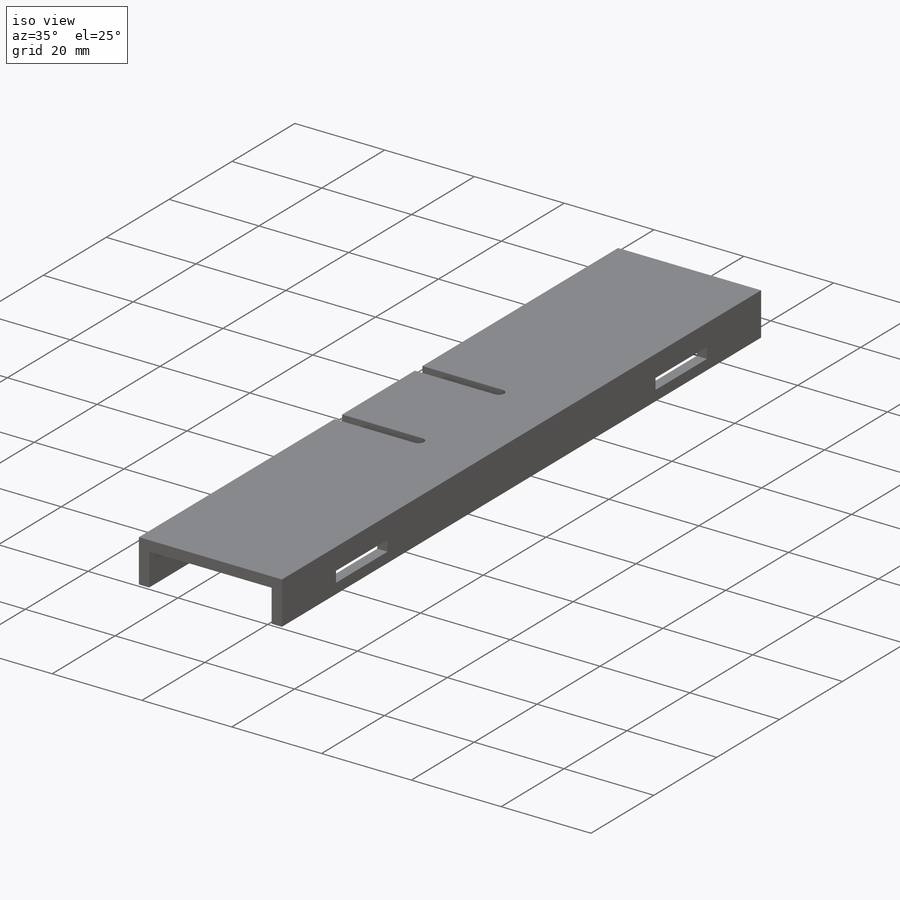
[diagram: iso view]
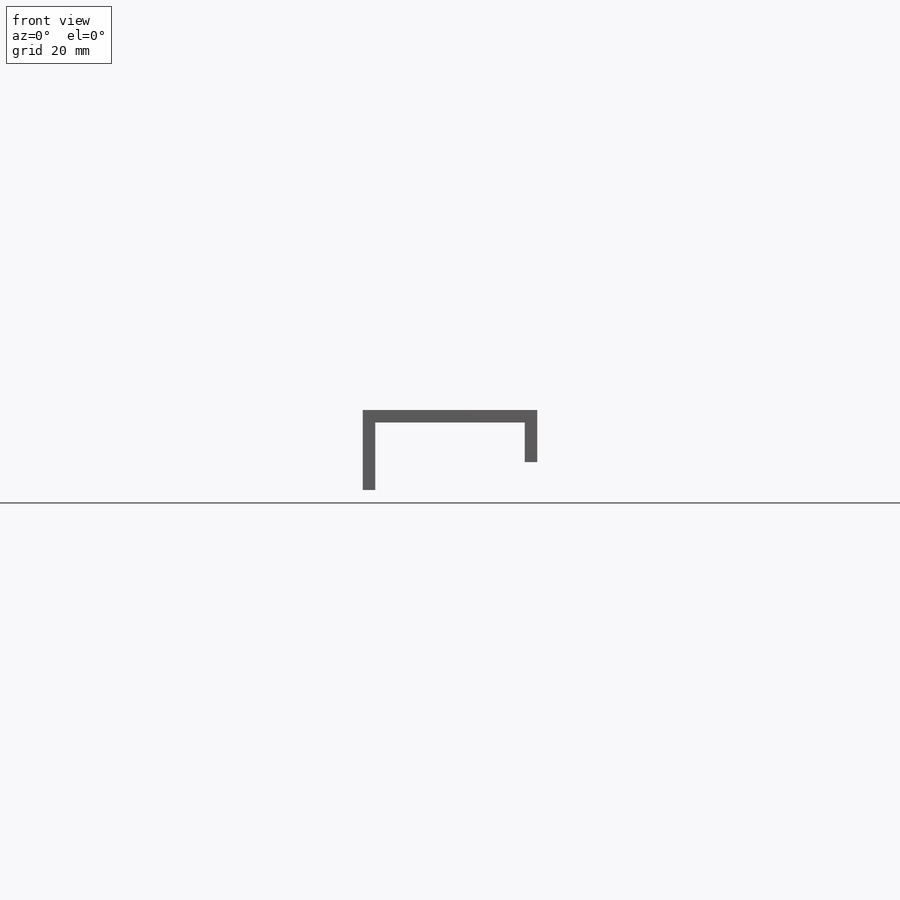
[diagram: front view]
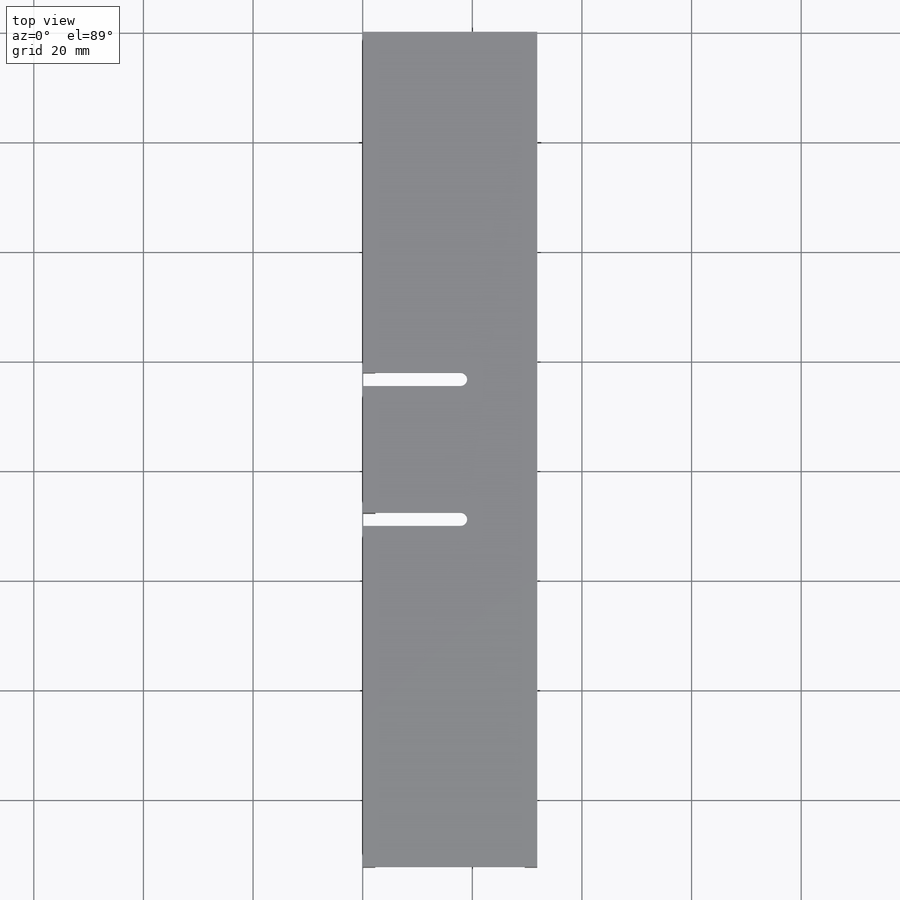
[diagram: top view]
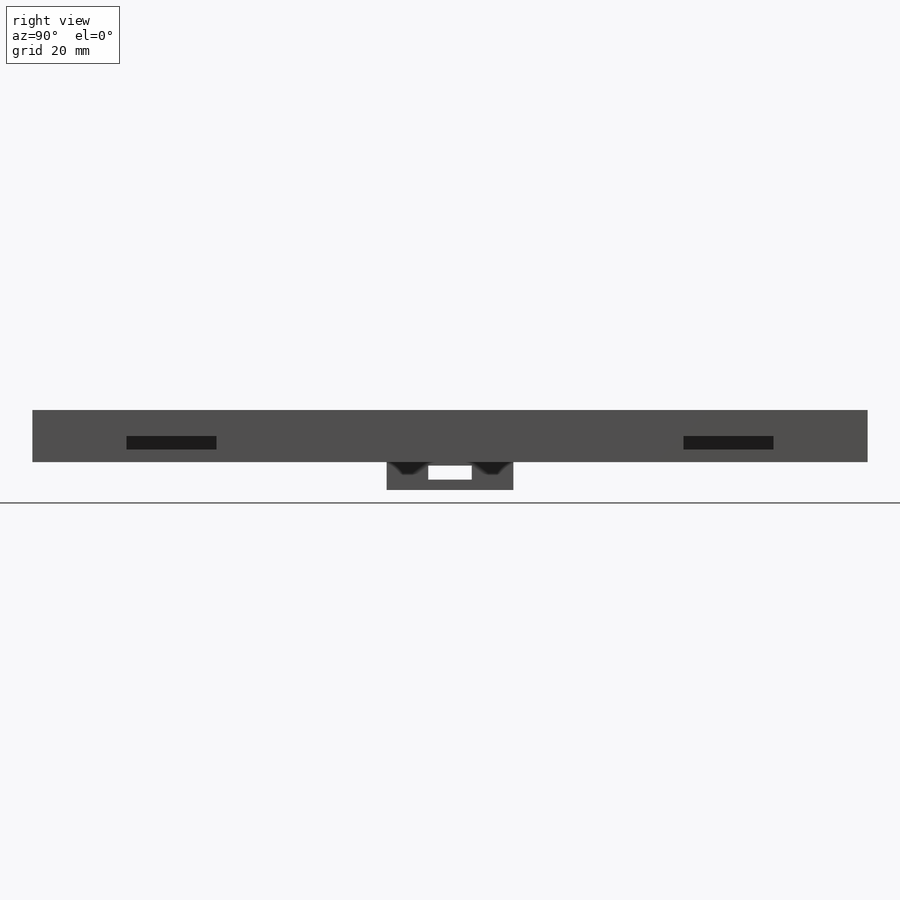
[diagram: right view]
SOLIDWORKS PART (.sldprt)
format: sldprt  version: not decoded by parser v0  size: 210,944 bytes
history: native  units: mm
features: sketch x6, cut_extrude x4, extrude x2, material x1 (+11 scaffold rows collapsed)
feature tree (24):
  scaffold x11  (default folders/planes/origin — collapsed)
  material  "Material <not specified>"
  sketch  "Sketch1"  dims[c1.D1=29.972mm c1.D2=9.525mm c2.D1=27.2796mm c2.D3=2.286mm]
  extrude  "Boss-Extrude1"  Depth=152.4mm
  sketch  "Sketch2"  dims[D1=25.4mm D2=16.383mm D3=2.413mm D4=2.286mm D5=7.9375mm D6=2.413mm]
  cut_extrude  "Cut-Extrude1"  [1 undecoded]
  sketch  "Sketch3"  dims[D1=16.383mm D2=2.413mm D3=2.286mm]
  cut_extrude  "Cut-Extrude2"  [1 undecoded]
  sketch  "Sketch4"  dims[D1=2.413mm D2=19.05mm D3=62.23mm]
  cut_extrude  "Cut-Extrude3"  [1 undecoded]
  sketch  "Sketch5"
  extrude  "Boss-Extrude2"  Depth=5.08mm
  sketch  "Sketch6"  dims[D1=7.9375mm D2=2.54mm D3=1.905mm]
  cut_extrude  "Cut-Extrude4"  [1 undecoded]
decode coverage: 7 of 12 modeling features carry decoded parameters
note: 4 parameter values undecoded
summary: no parameter record found for 4 features
note: suppression state not decoded; provenance and decode notes live in map.json
